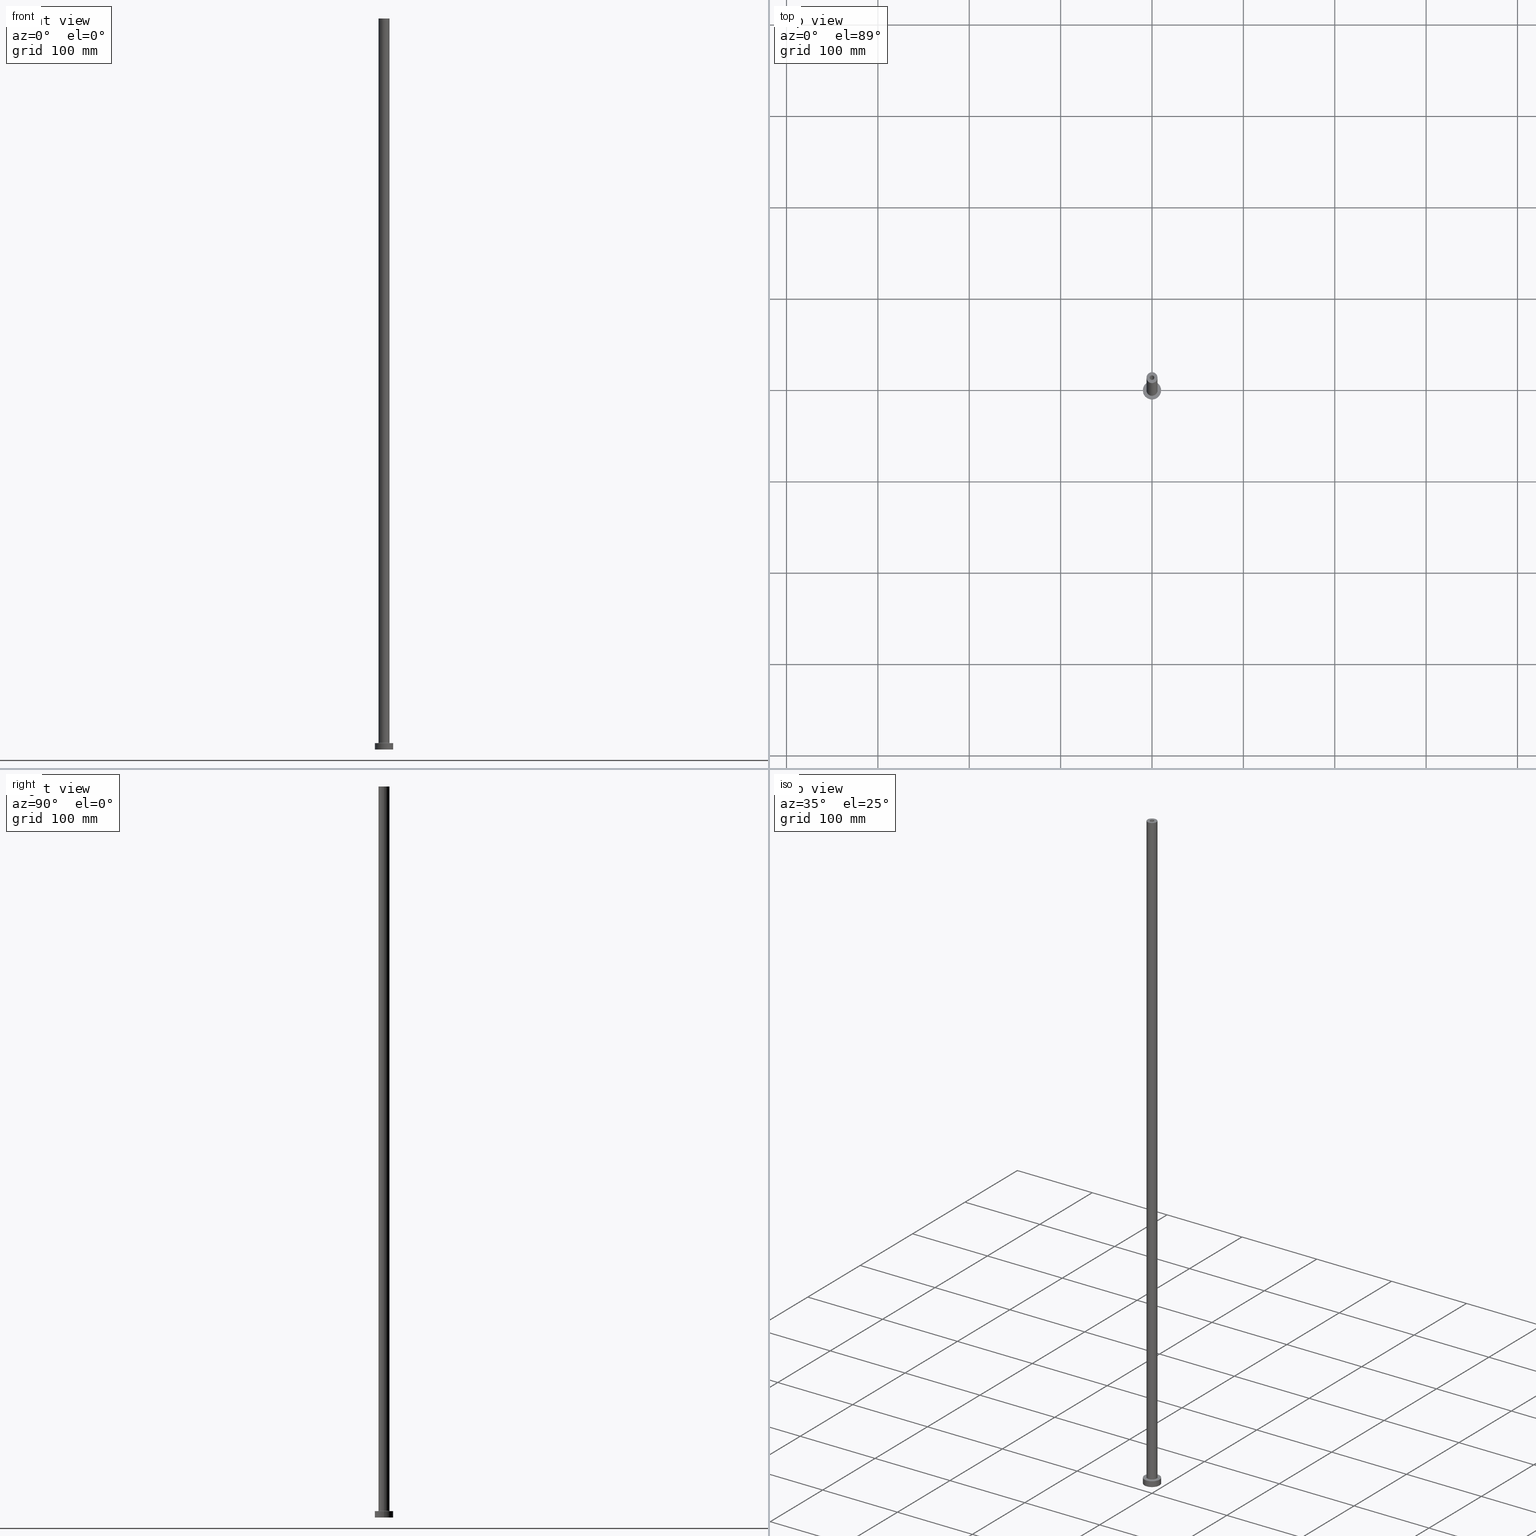
[diagram: canonical four-view strip — front | top / right | iso, engineering-drawing reading convention]
A machine part, canonical four-view strip (front | top / right | iso — engineering-drawing reading convention). The complete STEP part file that produces these views, byte-faithful:
ISO-10303-21;
HEADER;
FILE_DESCRIPTION (( 'STEP AP203' ),
    '1' );
FILE_NAME ('5ac9.STEP',
    '2023-02-13T16:43:34',
    ( '' ),
    ( '' ),
    'SwSTEP 2.0',
    'SolidWorks 2019',
    '' );
FILE_SCHEMA (( 'CONFIG_CONTROL_DESIGN' ));
ENDSEC;

DATA;
#1 = DIRECTION ( 'NONE',  ( 0.000000000000000000, 0.000000000000000000, -1.000000000000000000 ) ) ;
#2 = AXIS2_PLACEMENT_3D ( 'NONE', #54, #77, #235 ) ;
#3 = EDGE_LOOP ( 'NONE', ( #60, #399 ) ) ;
#4 = DIRECTION ( 'NONE',  ( -1.000000000000000000, 0.000000000000000000, 0.000000000000000000 ) ) ;
#5 = ADVANCED_FACE ( 'NONE', ( #360, #10 ), #291, .F. ) ;
#6 = FACE_OUTER_BOUND ( 'NONE', #22, .T. ) ;
#7 = PRODUCT_DEFINITION_SHAPE ( 'NONE', 'NONE',  #320 ) ;
#8 = DIRECTION ( 'NONE',  ( 1.000000000000000000, 0.000000000000000000, 0.000000000000000000 ) ) ;
#9 = AXIS2_PLACEMENT_3D ( 'NONE', #45, #181, #4 ) ;
#10 = FACE_OUTER_BOUND ( 'NONE', #161, .T. ) ;
#11 = AXIS2_PLACEMENT_3D ( 'NONE', #362, #149, #87 ) ;
#12 = ADVANCED_FACE ( 'NONE', ( #191, #160 ), #134, .T. ) ;
#13 = DIRECTION ( 'NONE',  ( -1.000000000000000000, 0.000000000000000000, 0.000000000000000000 ) ) ;
#14 = DIRECTION ( 'NONE',  ( -1.000000000000000000, 0.000000000000000000, 0.000000000000000000 ) ) ;
#15 = AXIS2_PLACEMENT_3D ( 'NONE', #334, #263, #162 ) ;
#16 = CC_DESIGN_SECURITY_CLASSIFICATION ( #248, ( #41 ) ) ;
#17 = ORIENTED_EDGE ( 'NONE', *, *, #299, .F. ) ;
#18 = CARTESIAN_POINT ( 'NONE',  ( 0.000000000000000000, 0.000000000000000000, 7.499999999999951150 ) ) ;
#19 = ORIENTED_EDGE ( 'NONE', *, *, #457, .F. ) ;
#20 = PERSON ( 'NEUR�EN�', 'NEUR�EN�', 'NEUR�EN�', ('NEUR�EN�'), ('NEUR�EN�'), ('NEUR�EN�') ) ;
#21 = DIRECTION ( 'NONE',  ( 0.000000000000000000, 0.000000000000000000, 1.000000000000000000 ) ) ;
#22 = EDGE_LOOP ( 'NONE', ( #379, #345 ) ) ;
#23 = CARTESIAN_POINT ( 'NONE',  ( 2.500000000000000000, 3.061616997868383141E-16, 800.0000000000000000 ) ) ;
#24 = DIRECTION ( 'NONE',  ( 1.000000000000000000, 0.000000000000000000, 0.000000000000000000 ) ) ;
#25 = CARTESIAN_POINT ( 'NONE',  ( 10.00000000000000000, 1.224646799147353256E-15, 7.000000000000000000 ) ) ;
#26 = CC_DESIGN_PERSON_AND_ORGANIZATION_ASSIGNMENT ( #281, #203, ( #330 ) ) ;
#27 = ORIENTED_EDGE ( 'NONE', *, *, #337, .F. ) ;
#28 = APPROVAL_PERSON_ORGANIZATION ( #271, #306, #76 ) ;
#29 = CARTESIAN_POINT ( 'NONE',  ( 0.000000000000000000, 0.000000000000000000, 800.0000000000000000 ) ) ;
#30 = DATE_AND_TIME ( #169, #120 ) ;
#31 = DIRECTION ( 'NONE',  ( 1.000000000000000000, 0.000000000000000000, 0.000000000000000000 ) ) ;
#32 = EDGE_CURVE ( 'NONE', #325, #154, #363, .T. ) ;
#33 = COORDINATED_UNIVERSAL_TIME_OFFSET ( 1, 0, .AHEAD. ) ;
#34 = CARTESIAN_POINT ( 'NONE',  ( 0.000000000000000000, 0.000000000000000000, 800.0000000000000000 ) ) ;
#35 = LINE ( 'NONE', #401, #302 ) ;
#36 = DIRECTION ( 'NONE',  ( -1.000000000000000000, 0.000000000000000000, 0.000000000000000000 ) ) ;
#37 = APPROVAL_ROLE ( '' ) ;
#38 = DIRECTION ( 'NONE',  ( 1.000000000000000000, 0.000000000000000000, 0.000000000000000000 ) ) ;
#39 = CIRCLE ( 'NONE', #318, 10.00000000000000000 ) ;
#40 = DIRECTION ( 'NONE',  ( 1.000000000000000000, 0.000000000000000000, 0.000000000000000000 ) ) ;
#41 = PRODUCT_DEFINITION_FORMATION_WITH_SPECIFIED_SOURCE ( 'LIBOVOLN�', '', #330, .NOT_KNOWN. ) ;
#42 = DIRECTION ( 'NONE',  ( -1.000000000000000000, 0.000000000000000000, 0.000000000000000000 ) ) ;
#43 = CARTESIAN_POINT ( 'NONE',  ( 0.000000000000000000, 0.000000000000000000, 7.000000000000000000 ) ) ;
#44 = CC_DESIGN_PERSON_AND_ORGANIZATION_ASSIGNMENT ( #395, #456, ( #248 ) ) ;
#45 = CARTESIAN_POINT ( 'NONE',  ( 0.000000000000000000, 0.000000000000000000, 800.0000000000000000 ) ) ;
#46 = ORIENTED_EDGE ( 'NONE', *, *, #32, .F. ) ;
#47 = CIRCLE ( 'NONE', #219, 6.000000000000000888 ) ;
#48 = DIRECTION ( 'NONE',  ( 1.000000000000000000, 0.000000000000000000, 0.000000000000000000 ) ) ;
#49 = AXIS2_PLACEMENT_3D ( 'NONE', #419, #388, #145 ) ;
#50 =( GEOMETRIC_REPRESENTATION_CONTEXT ( 3 ) GLOBAL_UNCERTAINTY_ASSIGNED_CONTEXT ( ( #292 ) ) GLOBAL_UNIT_ASSIGNED_CONTEXT ( ( #188, #440, #331 ) ) REPRESENTATION_CONTEXT ( 'NONE', 'WORKASPACE' ) );
#51 = EDGE_CURVE ( 'NONE', #314, #108, #47, .T. ) ;
#52 = AXIS2_PLACEMENT_3D ( 'NONE', #34, #272, #322 ) ;
#53 = CYLINDRICAL_SURFACE ( 'NONE', #88, 2.649999999999999911 ) ;
#54 = CARTESIAN_POINT ( 'NONE',  ( 0.000000000000000000, 0.000000000000000000, 7.000000000000000000 ) ) ;
#55 = FACE_OUTER_BOUND ( 'NONE', #340, .T. ) ;
#56 = AXIS2_PLACEMENT_3D ( 'NONE', #364, #336, #303 ) ;
#57 = CC_DESIGN_APPROVAL ( #306, ( #320 ) ) ;
#58 = VERTEX_POINT ( 'NONE', #266 ) ;
#59 = CARTESIAN_POINT ( 'NONE',  ( 2.649999999999999911, 3.245314017740485962E-16, 0.000000000000000000 ) ) ;
#60 = ORIENTED_EDGE ( 'NONE', *, *, #365, .F. ) ;
#61 = CARTESIAN_POINT ( 'NONE',  ( -2.500000000000000000, 0.000000000000000000, 755.0000000000000000 ) ) ;
#62 = ORIENTED_EDGE ( 'NONE', *, *, #82, .T. ) ;
#63 = ORIENTED_EDGE ( 'NONE', *, *, #72, .T. ) ;
#64 = CIRCLE ( 'NONE', #177, 0.5000000000000004441 ) ;
#65 = AXIS2_PLACEMENT_3D ( 'NONE', #107, #241, #40 ) ;
#66 = CC_DESIGN_DATE_AND_TIME_ASSIGNMENT ( #422, #344, ( #320 ) ) ;
#67 = CARTESIAN_POINT ( 'NONE',  ( 0.000000000000000000, 0.000000000000000000, 800.0000000000000000 ) ) ;
#68 = VERTEX_POINT ( 'NONE', #124 ) ;
#69 = EDGE_LOOP ( 'NONE', ( #210, #447, #165, #158 ) ) ;
#70 = APPLICATION_CONTEXT ( 'configuration controlled 3d designs of mechanical parts and assemblies' ) ;
#71 = ORIENTED_EDGE ( 'NONE', *, *, #400, .F. ) ;
#72 = EDGE_CURVE ( 'NONE', #296, #407, #373, .T. ) ;
#73 = AXIS2_PLACEMENT_3D ( 'NONE', #238, #196, #31 ) ;
#74 = COORDINATED_UNIVERSAL_TIME_OFFSET ( 1, 0, .AHEAD. ) ;
#75 = FACE_OUTER_BOUND ( 'NONE', #192, .T. ) ;
#76 = APPROVAL_ROLE ( '' ) ;
#77 = DIRECTION ( 'NONE',  ( 0.000000000000000000, 0.000000000000000000, 1.000000000000000000 ) ) ;
#78 = CARTESIAN_POINT ( 'NONE',  ( 2.649999999999999911, 3.245314017740485962E-16, 755.0000000000000000 ) ) ;
#79 = VERTEX_POINT ( 'NONE', #352 ) ;
#80 = DIRECTION ( 'NONE',  ( -0.000000000000000000, -0.000000000000000000, -1.000000000000000000 ) ) ;
#81 = VECTOR ( 'NONE', #353, 1000.000000000000000 ) ;
#82 = EDGE_CURVE ( 'NONE', #58, #325, #289, .T. ) ;
#83 = CARTESIAN_POINT ( 'NONE',  ( 0.000000000000000000, 0.000000000000000000, 755.0000000000000000 ) ) ;
#84 = LINE ( 'NONE', #250, #81 ) ;
#85 = EDGE_CURVE ( 'NONE', #221, #312, #361, .T. ) ;
#86 = CIRCLE ( 'NONE', #427, 2.500000000000000000 ) ;
#87 = DIRECTION ( 'NONE',  ( -1.000000000000000000, 1.224646799147351482E-16, 0.000000000000000000 ) ) ;
#88 = AXIS2_PLACEMENT_3D ( 'NONE', #215, #148, #13 ) ;
#89 = DIRECTION ( 'NONE',  ( 1.000000000000000000, 0.000000000000000000, 0.000000000000000000 ) ) ;
#90 = ORIENTED_EDGE ( 'NONE', *, *, #252, .T. ) ;
#91 = DIRECTION ( 'NONE',  ( -0.000000000000000000, -0.000000000000000000, -1.000000000000000000 ) ) ;
#92 = ADVANCED_FACE ( 'NONE', ( #254 ), #53, .F. ) ;
#93 = ORIENTED_EDGE ( 'NONE', *, *, #405, .F. ) ;
#94 = DIRECTION ( 'NONE',  ( 0.000000000000000000, -1.000000000000000000, 0.000000000000000000 ) ) ;
#95 = DIRECTION ( 'NONE',  ( 0.000000000000000000, 0.000000000000000000, 1.000000000000000000 ) ) ;
#96 = EDGE_CURVE ( 'NONE', #221, #390, #283, .T. ) ;
#97 = LINE ( 'NONE', #228, #397 ) ;
#98 = CIRCLE ( 'NONE', #350, 2.649999999999999911 ) ;
#99 = PERSON_AND_ORGANIZATION ( #20, #127 ) ;
#100 = PERSON_AND_ORGANIZATION ( #20, #127 ) ;
#101 = ORIENTED_EDGE ( 'NONE', *, *, #224, .F. ) ;
#102 = AXIS2_PLACEMENT_3D ( 'NONE', #139, #137, #433 ) ;
#103 = CALENDAR_DATE ( 2023, 13, 2 ) ;
#104 = FACE_OUTER_BOUND ( 'NONE', #69, .T. ) ;
#105 = TOROIDAL_SURFACE ( 'NONE', #460, 6.500000000000000888, 0.5000000000000000000 ) ;
#106 = DIRECTION ( 'NONE',  ( 0.000000000000000000, 0.000000000000000000, -1.000000000000000000 ) ) ;
#107 = CARTESIAN_POINT ( 'NONE',  ( 0.000000000000000000, 0.000000000000000000, 0.000000000000000000 ) ) ;
#108 = VERTEX_POINT ( 'NONE', #112 ) ;
#109 = CARTESIAN_POINT ( 'NONE',  ( -2.500000000000000000, 0.000000000000000000, 800.0000000000000000 ) ) ;
#110 = DATE_AND_TIME ( #103, #229 ) ;
#111 = DIRECTION ( 'NONE',  ( 0.000000000000000000, 0.000000000000000000, 1.000000000000000000 ) ) ;
#112 = CARTESIAN_POINT ( 'NONE',  ( -6.000000000000000888, 0.000000000000000000, 800.0000000000000000 ) ) ;
#113 = ADVANCED_FACE ( 'NONE', ( #146 ), #144, .F. ) ;
#114 = FACE_OUTER_BOUND ( 'NONE', #420, .T. ) ;
#115 = CIRCLE ( 'NONE', #324, 2.649999999999999911 ) ;
#116 = DIRECTION ( 'NONE',  ( -0.000000000000000000, -0.000000000000000000, -1.000000000000000000 ) ) ;
#117 = DIRECTION ( 'NONE',  ( -1.000000000000000000, 0.000000000000000000, 0.000000000000000000 ) ) ;
#118 = ADVANCED_FACE ( 'NONE', ( #55 ), #403, .F. ) ;
#119 = VECTOR ( 'NONE', #446, 1000.000000000000000 ) ;
#120 = LOCAL_TIME ( 17, 43, 34.00000000000000000, #270 ) ;
#121 = CARTESIAN_POINT ( 'NONE',  ( -10.00000000000000000, 0.000000000000000000, 7.000000000000000000 ) ) ;
#122 = ADVANCED_FACE ( 'NONE', ( #359, #6 ), #436, .T. ) ;
#123 = ORIENTED_EDGE ( 'NONE', *, *, #214, .T. ) ;
#124 = CARTESIAN_POINT ( 'NONE',  ( -2.649999999999999911, 0.000000000000000000, 0.000000000000000000 ) ) ;
#125 = CARTESIAN_POINT ( 'NONE',  ( 2.500000000000000000, 3.061616997868383141E-16, 800.0000000000000000 ) ) ;
#126 = AXIS2_PLACEMENT_3D ( 'NONE', #305, #130, #220 ) ;
#127 = ORGANIZATION ( 'NEUR�EN�', 'NEUR�EN�', '' ) ;
#128 = CARTESIAN_POINT ( 'NONE',  ( 2.500000000000000000, 3.061616997868383141E-16, 755.0000000000000000 ) ) ;
#129 = EDGE_CURVE ( 'NONE', #451, #58, #239, .T. ) ;
#130 = DIRECTION ( 'NONE',  ( 0.000000000000000000, 0.000000000000000000, 1.000000000000000000 ) ) ;
#131 = ORIENTED_EDGE ( 'NONE', *, *, #299, .T. ) ;
#132 = AXIS2_PLACEMENT_3D ( 'NONE', #406, #371, #260 ) ;
#133 = VERTEX_POINT ( 'NONE', #389 ) ;
#134 = PLANE ( 'NONE',  #52 ) ;
#135 = APPROVAL_ROLE ( '' ) ;
#136 = ORIENTED_EDGE ( 'NONE', *, *, #349, .T. ) ;
#137 = DIRECTION ( 'NONE',  ( 0.000000000000000000, 0.000000000000000000, 1.000000000000000000 ) ) ;
#138 = APPROVAL_STATUS ( 'not_yet_approved' ) ;
#139 = CARTESIAN_POINT ( 'NONE',  ( 0.000000000000000000, 0.000000000000000000, 800.0000000000000000 ) ) ;
#140 = DIRECTION ( 'NONE',  ( 1.000000000000000000, 0.000000000000000000, 0.000000000000000000 ) ) ;
#141 = EDGE_CURVE ( 'NONE', #327, #133, #163, .T. ) ;
#142 = CARTESIAN_POINT ( 'NONE',  ( 0.000000000000000000, 0.000000000000000000, 755.0000000000000000 ) ) ;
#143 = CARTESIAN_POINT ( 'NONE',  ( -10.00000000000000000, 0.000000000000000000, 7.000000000000000000 ) ) ;
#144 = TOROIDAL_SURFACE ( 'NONE', #199, 6.500000000000000888, 0.5000000000000000000 ) ;
#145 = DIRECTION ( 'NONE',  ( 1.000000000000000000, 0.000000000000000000, 0.000000000000000000 ) ) ;
#146 = FACE_OUTER_BOUND ( 'NONE', #201, .T. ) ;
#147 = EDGE_CURVE ( 'NONE', #414, #458, #438, .T. ) ;
#148 = DIRECTION ( 'NONE',  ( 0.000000000000000000, 0.000000000000000000, -1.000000000000000000 ) ) ;
#149 = DIRECTION ( 'NONE',  ( 1.224646799147353207E-16, 1.000000000000000000, -0.000000000000000000 ) ) ;
#150 = CARTESIAN_POINT ( 'NONE',  ( 0.000000000000000000, 0.000000000000000000, 0.000000000000000000 ) ) ;
#151 = DIRECTION ( 'NONE',  ( 1.000000000000000000, 0.000000000000000000, -0.000000000000000000 ) ) ;
#152 = CARTESIAN_POINT ( 'NONE',  ( 6.500000000000000888, 0.000000000000000000, 6.999999999999975131 ) ) ;
#153 = CC_DESIGN_PERSON_AND_ORGANIZATION_ASSIGNMENT ( #100, #237, ( #41 ) ) ;
#154 = VERTEX_POINT ( 'NONE', #152 ) ;
#155 = DIRECTION ( 'NONE',  ( 0.000000000000000000, 0.000000000000000000, -1.000000000000000000 ) ) ;
#156 = EDGE_LOOP ( 'NONE', ( #242, #380, #372, #230 ) ) ;
#157 = DIRECTION ( 'NONE',  ( 1.000000000000000000, 0.000000000000000000, 0.000000000000000000 ) ) ;
#158 = ORIENTED_EDGE ( 'NONE', *, *, #85, .F. ) ;
#159 = DIRECTION ( 'NONE',  ( 0.000000000000000000, 0.000000000000000000, 1.000000000000000000 ) ) ;
#160 = FACE_OUTER_BOUND ( 'NONE', #356, .T. ) ;
#161 = EDGE_LOOP ( 'NONE', ( #101, #93 ) ) ;
#162 = DIRECTION ( 'NONE',  ( -1.000000000000000000, 0.000000000000000000, 0.000000000000000000 ) ) ;
#163 = CIRCLE ( 'NONE', #49, 2.649999999999999911 ) ;
#164 = LOCAL_TIME ( 17, 43, 34.00000000000000000, #308 ) ;
#165 = ORIENTED_EDGE ( 'NONE', *, *, #405, .T. ) ;
#166 = CARTESIAN_POINT ( 'NONE',  ( 6.000000000000000888, 7.347880794884120722E-16, 7.499999999999951150 ) ) ;
#167 = FACE_OUTER_BOUND ( 'NONE', #171, .T. ) ;
#168 = AXIS2_PLACEMENT_3D ( 'NONE', #286, #116, #8 ) ;
#169 = CALENDAR_DATE ( 2023, 13, 2 ) ;
#170 = ORIENTED_EDGE ( 'NONE', *, *, #413, .T. ) ;
#171 = EDGE_LOOP ( 'NONE', ( #63, #204, #251, #304 ) ) ;
#172 = COORDINATED_UNIVERSAL_TIME_OFFSET ( 1, 0, .AHEAD. ) ;
#173 = LINE ( 'NONE', #284, #217 ) ;
#174 = APPROVAL_DATE_TIME ( #30, #332 ) ;
#175 = EDGE_CURVE ( 'NONE', #133, #327, #115, .T. ) ;
#176 = ORIENTED_EDGE ( 'NONE', *, *, #175, .F. ) ;
#177 = AXIS2_PLACEMENT_3D ( 'NONE', #376, #94, #408 ) ;
#178 = CYLINDRICAL_SURFACE ( 'NONE', #410, 10.00000000000000000 ) ;
#179 = PLANE ( 'NONE',  #309 ) ;
#180 = ORIENTED_EDGE ( 'NONE', *, *, #129, .T. ) ;
#181 = DIRECTION ( 'NONE',  ( -0.000000000000000000, -0.000000000000000000, -1.000000000000000000 ) ) ;
#182 = DIRECTION ( 'NONE',  ( 0.000000000000000000, 0.000000000000000000, 1.000000000000000000 ) ) ;
#183 = CIRCLE ( 'NONE', #384, 2.649999999999999911 ) ;
#184 = CYLINDRICAL_SURFACE ( 'NONE', #341, 6.000000000000000888 ) ;
#185 = ADVANCED_FACE ( 'NONE', ( #321 ), #430, .F. ) ;
#186 = EDGE_LOOP ( 'NONE', ( #416, #236, #343, #206 ) ) ;
#187 = CIRCLE ( 'NONE', #258, 2.500000000000000000 ) ;
#188 =( LENGTH_UNIT ( ) NAMED_UNIT ( * ) SI_UNIT ( .MILLI., .METRE. ) );
#189 = DIRECTION ( 'NONE',  ( 0.000000000000000000, 0.000000000000000000, 1.000000000000000000 ) ) ;
#190 = LINE ( 'NONE', #23, #119 ) ;
#191 = FACE_BOUND ( 'NONE', #300, .T. ) ;
#192 = EDGE_LOOP ( 'NONE', ( #428, #338, #366, #46 ) ) ;
#193 = EDGE_CURVE ( 'NONE', #314, #451, #84, .T. ) ;
#194 = DIRECTION ( 'NONE',  ( 0.000000000000000000, 0.000000000000000000, -1.000000000000000000 ) ) ;
#195 = ORIENTED_EDGE ( 'NONE', *, *, #382, .F. ) ;
#196 = DIRECTION ( 'NONE',  ( 0.000000000000000000, 0.000000000000000000, 1.000000000000000000 ) ) ;
#197 = CARTESIAN_POINT ( 'NONE',  ( 0.000000000000000000, 0.000000000000000000, 0.000000000000000000 ) ) ;
#198 = AXIS2_PLACEMENT_3D ( 'NONE', #319, #1, #117 ) ;
#199 = AXIS2_PLACEMENT_3D ( 'NONE', #18, #189, #275 ) ;
#200 = CC_DESIGN_PERSON_AND_ORGANIZATION_ASSIGNMENT ( #99, #347, ( #41 ) ) ;
#201 = EDGE_LOOP ( 'NONE', ( #277, #62, #17, #27 ) ) ;
#202 = CARTESIAN_POINT ( 'NONE',  ( 0.000000000000000000, 0.000000000000000000, 800.0000000000000000 ) ) ;
#203 = PERSON_AND_ORGANIZATION_ROLE ( 'design_owner' ) ;
#204 = ORIENTED_EDGE ( 'NONE', *, *, #400, .T. ) ;
#205 = CALENDAR_DATE ( 2023, 13, 2 ) ;
#206 = ORIENTED_EDGE ( 'NONE', *, *, #374, .F. ) ;
#207 = DIRECTION ( 'NONE',  ( 1.000000000000000000, 0.000000000000000000, 0.000000000000000000 ) ) ;
#208 = ADVANCED_FACE ( 'NONE', ( #346, #114 ), #179, .F. ) ;
#209 = SECURITY_CLASSIFICATION_LEVEL ( 'unclassified' ) ;
#210 = ORIENTED_EDGE ( 'NONE', *, *, #358, .F. ) ;
#211 = CIRCLE ( 'NONE', #367, 6.000000000000000888 ) ;
#212 = CARTESIAN_POINT ( 'NONE',  ( 0.000000000000000000, 0.000000000000000000, 0.000000000000000000 ) ) ;
#213 = DIRECTION ( 'NONE',  ( 0.000000000000000000, 0.000000000000000000, 1.000000000000000000 ) ) ;
#214 = EDGE_CURVE ( 'NONE', #296, #414, #35, .T. ) ;
#215 = CARTESIAN_POINT ( 'NONE',  ( 0.000000000000000000, 0.000000000000000000, 762.4953318805775098 ) ) ;
#216 = CARTESIAN_POINT ( 'NONE',  ( 0.000000000000000000, 0.000000000000000000, 7.000000000000000000 ) ) ;
#217 = VECTOR ( 'NONE', #354, 1000.000000000000000 ) ;
#218 = ADVANCED_FACE ( 'NONE', ( #75 ), #105, .F. ) ;
#219 = AXIS2_PLACEMENT_3D ( 'NONE', #29, #313, #157 ) ;
#220 = DIRECTION ( 'NONE',  ( 1.000000000000000000, 0.000000000000000000, 0.000000000000000000 ) ) ;
#221 = VERTEX_POINT ( 'NONE', #143 ) ;
#222 = AXIS2_PLACEMENT_3D ( 'NONE', #432, #287, #207 ) ;
#223 = CYLINDRICAL_SURFACE ( 'NONE', #15, 2.500000000000000000 ) ;
#224 = EDGE_CURVE ( 'NONE', #312, #79, #39, .T. ) ;
#225 = DIRECTION ( 'NONE',  ( -0.000000000000000000, -0.000000000000000000, -1.000000000000000000 ) ) ;
#226 = DIRECTION ( 'NONE',  ( 1.000000000000000000, 0.000000000000000000, 0.000000000000000000 ) ) ;
#227 = AXIS2_PLACEMENT_3D ( 'NONE', #378, #21, #89 ) ;
#228 = CARTESIAN_POINT ( 'NONE',  ( 2.649999999999999911, 3.245314017740485962E-16, 762.4953318805775098 ) ) ;
#229 = LOCAL_TIME ( 17, 43, 34.00000000000000000, #33 ) ;
#230 = ORIENTED_EDGE ( 'NONE', *, *, #365, .T. ) ;
#231 = APPROVAL ( #431, 'NEUR�EN�' ) ;
#232 = PERSON_AND_ORGANIZATION ( #20, #127 ) ;
#233 = ORIENTED_EDGE ( 'NONE', *, *, #349, .F. ) ;
#234 = CALENDAR_DATE ( 2023, 13, 2 ) ;
#235 = DIRECTION ( 'NONE',  ( 1.000000000000000000, 0.000000000000000000, -0.000000000000000000 ) ) ;
#236 = ORIENTED_EDGE ( 'NONE', *, *, #429, .T. ) ;
#237 = PERSON_AND_ORGANIZATION_ROLE ( 'design_supplier' ) ;
#238 = CARTESIAN_POINT ( 'NONE',  ( 0.000000000000000000, 0.000000000000000000, 7.499999999999951150 ) ) ;
#239 = CIRCLE ( 'NONE', #73, 6.000000000000000888 ) ;
#240 = CARTESIAN_POINT ( 'NONE',  ( 0.000000000000000000, 0.000000000000000000, 7.000000000000000000 ) ) ;
#241 = DIRECTION ( 'NONE',  ( 0.000000000000000000, 0.000000000000000000, 1.000000000000000000 ) ) ;
#242 = ORIENTED_EDGE ( 'NONE', *, *, #429, .F. ) ;
#243 = CARTESIAN_POINT ( 'NONE',  ( 6.000000000000000888, 7.347880794884120722E-16, 800.0000000000000000 ) ) ;
#244 = DATE_AND_TIME ( #424, #164 ) ;
#245 = FACE_OUTER_BOUND ( 'NONE', #393, .T. ) ;
#246 = DIRECTION ( 'NONE',  ( 0.000000000000000000, 0.000000000000000000, 1.000000000000000000 ) ) ;
#247 = DIRECTION ( 'NONE',  ( 1.000000000000000000, 0.000000000000000000, 0.000000000000000000 ) ) ;
#248 = SECURITY_CLASSIFICATION ( '', '', #209 ) ;
#249 = PRODUCT_RELATED_PRODUCT_CATEGORY ( 'detail', '', ( #330 ) ) ;
#250 = CARTESIAN_POINT ( 'NONE',  ( 6.000000000000000888, 7.347880794884120722E-16, 800.0000000000000000 ) ) ;
#251 = ORIENTED_EDGE ( 'NONE', *, *, #147, .F. ) ;
#252 = EDGE_CURVE ( 'NONE', #458, #414, #86, .T. ) ;
#253 = VECTOR ( 'NONE', #155, 1000.000000000000000 ) ;
#254 = FACE_OUTER_BOUND ( 'NONE', #186, .T. ) ;
#255 = CYLINDRICAL_SURFACE ( 'NONE', #56, 10.00000000000000000 ) ;
#256 = EDGE_LOOP ( 'NONE', ( #131, #333 ) ) ;
#257 = ORIENTED_EDGE ( 'NONE', *, *, #141, .F. ) ;
#258 = AXIS2_PLACEMENT_3D ( 'NONE', #412, #159, #226 ) ;
#259 = APPROVAL_PERSON_ORGANIZATION ( #232, #332, #37 ) ;
#260 = DIRECTION ( 'NONE',  ( 1.000000000000000000, 0.000000000000000000, 0.000000000000000000 ) ) ;
#261 = EDGE_CURVE ( 'NONE', #390, #79, #173, .T. ) ;
#262 = DESIGN_CONTEXT ( 'detailed design', #70, 'design' ) ;
#263 = DIRECTION ( 'NONE',  ( 0.000000000000000000, 0.000000000000000000, -1.000000000000000000 ) ) ;
#264 = MANIFOLD_SOLID_BREP ( 'Odebrat vysunut�m4', #425 ) ;
#265 = ORIENTED_EDGE ( 'NONE', *, *, #147, .T. ) ;
#266 = CARTESIAN_POINT ( 'NONE',  ( -6.000000000000000888, 0.000000000000000000, 7.499999999999951150 ) ) ;
#267 = CARTESIAN_POINT ( 'NONE',  ( -6.000000000000000888, 0.000000000000000000, 800.0000000000000000 ) ) ;
#268 = ADVANCED_FACE ( 'NONE', ( #104 ), #178, .T. ) ;
#269 = AXIS2_PLACEMENT_3D ( 'NONE', #202, #106, #36 ) ;
#270 = COORDINATED_UNIVERSAL_TIME_OFFSET ( 1, 0, .AHEAD. ) ;
#271 = PERSON_AND_ORGANIZATION ( #20, #127 ) ;
#272 = DIRECTION ( 'NONE',  ( 0.000000000000000000, 0.000000000000000000, 1.000000000000000000 ) ) ;
#273 = ORIENTED_EDGE ( 'NONE', *, *, #193, .F. ) ;
#274 = APPLICATION_CONTEXT ( 'configuration controlled 3d designs of mechanical parts and assemblies' ) ;
#275 = DIRECTION ( 'NONE',  ( 1.000000000000000000, 0.000000000000000000, 0.000000000000000000 ) ) ;
#276 = PERSON_AND_ORGANIZATION_ROLE ( 'creator' ) ;
#277 = ORIENTED_EDGE ( 'NONE', *, *, #413, .F. ) ;
#278 = APPLICATION_PROTOCOL_DEFINITION ( 'international standard', 'config_control_design', 1994, #70 ) ;
#279 = AXIS2_PLACEMENT_3D ( 'NONE', #240, #459, #140 ) ;
#280 = CARTESIAN_POINT ( 'NONE',  ( -10.00000000000000000, 0.000000000000000000, 0.000000000000000000 ) ) ;
#281 = PERSON_AND_ORGANIZATION ( #20, #127 ) ;
#282 = DIRECTION ( 'NONE',  ( 0.000000000000000000, 0.000000000000000000, 1.000000000000000000 ) ) ;
#283 = CIRCLE ( 'NONE', #339, 10.00000000000000000 ) ;
#284 = CARTESIAN_POINT ( 'NONE',  ( 10.00000000000000000, 1.224646799147353256E-15, 7.000000000000000000 ) ) ;
#285 = ADVANCED_FACE ( 'NONE', ( #316 ), #434, .T. ) ;
#286 = CARTESIAN_POINT ( 'NONE',  ( 0.000000000000000000, 0.000000000000000000, 7.000000000000000000 ) ) ;
#287 = DIRECTION ( 'NONE',  ( 0.000000000000000000, 0.000000000000000000, 1.000000000000000000 ) ) ;
#288 = ADVANCED_FACE ( 'NONE', ( #245 ), #184, .T. ) ;
#289 = CIRCLE ( 'NONE', #11, 0.5000000000000004441 ) ;
#290 = DIRECTION ( 'NONE',  ( 0.000000000000000000, 0.000000000000000000, 1.000000000000000000 ) ) ;
#291 = PLANE ( 'NONE',  #394 ) ;
#292 = UNCERTAINTY_MEASURE_WITH_UNIT (LENGTH_MEASURE( 1.000000000000000082E-05 ), #188, 'distance_accuracy_value', 'NONE');
#293 = CIRCLE ( 'NONE', #126, 10.00000000000000000 ) ;
#294 = LOCAL_TIME ( 17, 43, 34.00000000000000000, #74 ) ;
#295 = DIRECTION ( 'NONE',  ( 0.000000000000000000, 0.000000000000000000, 1.000000000000000000 ) ) ;
#296 = VERTEX_POINT ( 'NONE', #109 ) ;
#297 = DIRECTION ( 'NONE',  ( -0.000000000000000000, -0.000000000000000000, -1.000000000000000000 ) ) ;
#298 = ORIENTED_EDGE ( 'NONE', *, *, #96, .F. ) ;
#299 = EDGE_CURVE ( 'NONE', #154, #325, #421, .T. ) ;
#300 = EDGE_LOOP ( 'NONE', ( #417, #233 ) ) ;
#301 = LINE ( 'NONE', #449, #253 ) ;
#302 = VECTOR ( 'NONE', #396, 1000.000000000000000 ) ;
#303 = DIRECTION ( 'NONE',  ( -1.000000000000000000, 0.000000000000000000, 0.000000000000000000 ) ) ;
#304 = ORIENTED_EDGE ( 'NONE', *, *, #214, .F. ) ;
#305 = CARTESIAN_POINT ( 'NONE',  ( 0.000000000000000000, 0.000000000000000000, 7.000000000000000000 ) ) ;
#306 = APPROVAL ( #455, 'NEUR�EN�' ) ;
#307 = EDGE_LOOP ( 'NONE', ( #443, #298, #402, #335 ) ) ;
#308 = COORDINATED_UNIVERSAL_TIME_OFFSET ( 1, 0, .AHEAD. ) ;
#309 = AXIS2_PLACEMENT_3D ( 'NONE', #142, #295, #348 ) ;
#310 = DATE_AND_TIME ( #234, #411 ) ;
#311 = APPROVAL_PERSON_ORGANIZATION ( #452, #231, #135 ) ;
#312 = VERTEX_POINT ( 'NONE', #280 ) ;
#313 = DIRECTION ( 'NONE',  ( 0.000000000000000000, 0.000000000000000000, 1.000000000000000000 ) ) ;
#314 = VERTEX_POINT ( 'NONE', #243 ) ;
#315 = APPROVAL_DATE_TIME ( #244, #306 ) ;
#316 = FACE_OUTER_BOUND ( 'NONE', #441, .T. ) ;
#317 = SHAPE_DEFINITION_REPRESENTATION ( #7, #450 ) ;
#318 = AXIS2_PLACEMENT_3D ( 'NONE', #212, #111, #38 ) ;
#319 = CARTESIAN_POINT ( 'NONE',  ( 0.000000000000000000, 0.000000000000000000, 762.4953318805775098 ) ) ;
#320 = PRODUCT_DEFINITION ( 'NEZN�M�', '', #41, #262 ) ;
#321 = FACE_OUTER_BOUND ( 'NONE', #156, .T. ) ;
#322 = DIRECTION ( 'NONE',  ( 1.000000000000000000, 0.000000000000000000, -0.000000000000000000 ) ) ;
#323 = CARTESIAN_POINT ( 'NONE',  ( 0.000000000000000000, 0.000000000000000000, 7.499999999999951150 ) ) ;
#324 = AXIS2_PLACEMENT_3D ( 'NONE', #398, #282, #435 ) ;
#325 = VERTEX_POINT ( 'NONE', #391 ) ;
#326 = ORIENTED_EDGE ( 'NONE', *, *, #252, .F. ) ;
#327 = VERTEX_POINT ( 'NONE', #78 ) ;
#328 = CARTESIAN_POINT ( 'NONE',  ( 0.000000000000000000, 0.000000000000000000, 800.0000000000000000 ) ) ;
#329 = VECTOR ( 'NONE', #225, 1000.000000000000000 ) ;
#330 = PRODUCT ( '5ac9', '5ac9', '', ( #381 ) ) ;
#331 =( NAMED_UNIT ( * ) SI_UNIT ( $, .STERADIAN. ) SOLID_ANGLE_UNIT ( ) );
#332 = APPROVAL ( #138, 'NEUR�EN�' ) ;
#333 = ORIENTED_EDGE ( 'NONE', *, *, #32, .T. ) ;
#334 = CARTESIAN_POINT ( 'NONE',  ( 0.000000000000000000, 0.000000000000000000, 800.0000000000000000 ) ) ;
#335 = ORIENTED_EDGE ( 'NONE', *, *, #224, .T. ) ;
#336 = DIRECTION ( 'NONE',  ( -0.000000000000000000, -0.000000000000000000, -1.000000000000000000 ) ) ;
#337 = EDGE_CURVE ( 'NONE', #451, #154, #64, .T. ) ;
#338 = ORIENTED_EDGE ( 'NONE', *, *, #129, .F. ) ;
#339 = AXIS2_PLACEMENT_3D ( 'NONE', #43, #182, #247 ) ;
#340 = EDGE_LOOP ( 'NONE', ( #71, #136, #123, #326 ) ) ;
#341 = AXIS2_PLACEMENT_3D ( 'NONE', #328, #80, #14 ) ;
#342 = APPROVAL_DATE_TIME ( #110, #231 ) ;
#343 = ORIENTED_EDGE ( 'NONE', *, *, #423, .T. ) ;
#344 = DATE_TIME_ROLE ( 'creation_date' ) ;
#345 = ORIENTED_EDGE ( 'NONE', *, *, #358, .T. ) ;
#346 = FACE_BOUND ( 'NONE', #445, .T. ) ;
#347 = PERSON_AND_ORGANIZATION_ROLE ( 'creator' ) ;
#348 = DIRECTION ( 'NONE',  ( 1.000000000000000000, 0.000000000000000000, -0.000000000000000000 ) ) ;
#349 = EDGE_CURVE ( 'NONE', #407, #296, #187, .T. ) ;
#350 = AXIS2_PLACEMENT_3D ( 'NONE', #197, #297, #442 ) ;
#351 = CC_DESIGN_APPROVAL ( #332, ( #248 ) ) ;
#352 = CARTESIAN_POINT ( 'NONE',  ( 10.00000000000000000, 1.224646799147353256E-15, 0.000000000000000000 ) ) ;
#353 = DIRECTION ( 'NONE',  ( -0.000000000000000000, -0.000000000000000000, -1.000000000000000000 ) ) ;
#354 = DIRECTION ( 'NONE',  ( -0.000000000000000000, -0.000000000000000000, -1.000000000000000000 ) ) ;
#355 = VECTOR ( 'NONE', #404, 1000.000000000000000 ) ;
#356 = EDGE_LOOP ( 'NONE', ( #370, #387 ) ) ;
#357 = DIRECTION ( 'NONE',  ( 1.000000000000000000, 0.000000000000000000, 0.000000000000000000 ) ) ;
#358 = EDGE_CURVE ( 'NONE', #390, #221, #293, .T. ) ;
#359 = FACE_BOUND ( 'NONE', #256, .T. ) ;
#360 = FACE_BOUND ( 'NONE', #3, .T. ) ;
#361 = LINE ( 'NONE', #121, #355 ) ;
#362 = CARTESIAN_POINT ( 'NONE',  ( -6.500000000000000888, 7.960204194457796463E-16, 7.499999999999951150 ) ) ;
#363 = CIRCLE ( 'NONE', #168, 6.500000000000000888 ) ;
#364 = CARTESIAN_POINT ( 'NONE',  ( 0.000000000000000000, 0.000000000000000000, 7.000000000000000000 ) ) ;
#365 = EDGE_CURVE ( 'NONE', #68, #409, #183, .T. ) ;
#366 = ORIENTED_EDGE ( 'NONE', *, *, #337, .T. ) ;
#367 = AXIS2_PLACEMENT_3D ( 'NONE', #67, #95, #448 ) ;
#368 = ORIENTED_EDGE ( 'NONE', *, *, #193, .T. ) ;
#369 = CARTESIAN_POINT ( 'NONE',  ( 0.000000000000000000, 0.000000000000000000, 0.000000000000000000 ) ) ;
#370 = ORIENTED_EDGE ( 'NONE', *, *, #457, .T. ) ;
#371 = DIRECTION ( 'NONE',  ( 0.000000000000000000, 0.000000000000000000, 1.000000000000000000 ) ) ;
#372 = ORIENTED_EDGE ( 'NONE', *, *, #374, .T. ) ;
#373 = CIRCLE ( 'NONE', #102, 2.500000000000000000 ) ;
#374 = EDGE_CURVE ( 'NONE', #133, #68, #301, .T. ) ;
#375 = ORIENTED_EDGE ( 'NONE', *, *, #382, .T. ) ;
#376 = CARTESIAN_POINT ( 'NONE',  ( 6.500000000000000888, 0.000000000000000000, 7.499999999999951150 ) ) ;
#377 = CIRCLE ( 'NONE', #227, 10.00000000000000000 ) ;
#378 = CARTESIAN_POINT ( 'NONE',  ( 0.000000000000000000, 0.000000000000000000, 0.000000000000000000 ) ) ;
#379 = ORIENTED_EDGE ( 'NONE', *, *, #96, .T. ) ;
#380 = ORIENTED_EDGE ( 'NONE', *, *, #141, .T. ) ;
#381 = MECHANICAL_CONTEXT ( 'NONE', #274, 'mechanical' ) ;
#382 = EDGE_CURVE ( 'NONE', #108, #58, #418, .T. ) ;
#383 = ORIENTED_EDGE ( 'NONE', *, *, #51, .F. ) ;
#384 = AXIS2_PLACEMENT_3D ( 'NONE', #369, #91, #24 ) ;
#385 = APPLICATION_PROTOCOL_DEFINITION ( 'international standard', 'config_control_design', 1994, #274 ) ;
#386 = CC_DESIGN_APPROVAL ( #231, ( #41 ) ) ;
#387 = ORIENTED_EDGE ( 'NONE', *, *, #51, .T. ) ;
#388 = DIRECTION ( 'NONE',  ( 0.000000000000000000, 0.000000000000000000, 1.000000000000000000 ) ) ;
#389 = CARTESIAN_POINT ( 'NONE',  ( -2.649999999999999911, 0.000000000000000000, 755.0000000000000000 ) ) ;
#390 = VERTEX_POINT ( 'NONE', #25 ) ;
#391 = CARTESIAN_POINT ( 'NONE',  ( -6.500000000000000888, 7.960204194457796463E-16, 6.999999999999975131 ) ) ;
#392 = CC_DESIGN_PERSON_AND_ORGANIZATION_ASSIGNMENT ( #426, #276, ( #320 ) ) ;
#393 = EDGE_LOOP ( 'NONE', ( #273, #19, #375, #170 ) ) ;
#394 = AXIS2_PLACEMENT_3D ( 'NONE', #150, #290, #151 ) ;
#395 = PERSON_AND_ORGANIZATION ( #20, #127 ) ;
#396 = DIRECTION ( 'NONE',  ( 0.000000000000000000, 0.000000000000000000, -1.000000000000000000 ) ) ;
#397 = VECTOR ( 'NONE', #194, 1000.000000000000000 ) ;
#398 = CARTESIAN_POINT ( 'NONE',  ( 0.000000000000000000, 0.000000000000000000, 755.0000000000000000 ) ) ;
#399 = ORIENTED_EDGE ( 'NONE', *, *, #423, .F. ) ;
#400 = EDGE_CURVE ( 'NONE', #407, #458, #190, .T. ) ;
#401 = CARTESIAN_POINT ( 'NONE',  ( -2.500000000000000000, 0.000000000000000000, 800.0000000000000000 ) ) ;
#402 = ORIENTED_EDGE ( 'NONE', *, *, #85, .T. ) ;
#403 = CYLINDRICAL_SURFACE ( 'NONE', #269, 2.500000000000000000 ) ;
#404 = DIRECTION ( 'NONE',  ( -0.000000000000000000, -0.000000000000000000, -1.000000000000000000 ) ) ;
#405 = EDGE_CURVE ( 'NONE', #79, #312, #377, .T. ) ;
#406 = CARTESIAN_POINT ( 'NONE',  ( 0.000000000000000000, 0.000000000000000000, 7.499999999999951150 ) ) ;
#407 = VERTEX_POINT ( 'NONE', #125 ) ;
#408 = DIRECTION ( 'NONE',  ( 0.000000000000000000, 0.000000000000000000, -1.000000000000000000 ) ) ;
#409 = VERTEX_POINT ( 'NONE', #59 ) ;
#410 = AXIS2_PLACEMENT_3D ( 'NONE', #216, #461, #42 ) ;
#411 = LOCAL_TIME ( 17, 43, 34.00000000000000000, #172 ) ;
#412 = CARTESIAN_POINT ( 'NONE',  ( 0.000000000000000000, 0.000000000000000000, 800.0000000000000000 ) ) ;
#413 = EDGE_CURVE ( 'NONE', #58, #451, #437, .T. ) ;
#414 = VERTEX_POINT ( 'NONE', #61 ) ;
#415 = FACE_OUTER_BOUND ( 'NONE', #307, .T. ) ;
#416 = ORIENTED_EDGE ( 'NONE', *, *, #175, .T. ) ;
#417 = ORIENTED_EDGE ( 'NONE', *, *, #72, .F. ) ;
#418 = LINE ( 'NONE', #267, #329 ) ;
#419 = CARTESIAN_POINT ( 'NONE',  ( 0.000000000000000000, 0.000000000000000000, 755.0000000000000000 ) ) ;
#420 = EDGE_LOOP ( 'NONE', ( #176, #257 ) ) ;
#421 = CIRCLE ( 'NONE', #279, 6.500000000000000888 ) ;
#422 = DATE_AND_TIME ( #205, #294 ) ;
#423 = EDGE_CURVE ( 'NONE', #409, #68, #98, .T. ) ;
#424 = CALENDAR_DATE ( 2023, 13, 2 ) ;
#425 = CLOSED_SHELL ( 'NONE', ( #439, #92, #113, #285, #268, #453, #122, #5, #288, #12, #218, #185, #208, #118 ) ) ;
#426 = PERSON_AND_ORGANIZATION ( #20, #127 ) ;
#427 = AXIS2_PLACEMENT_3D ( 'NONE', #83, #213, #48 ) ;
#428 = ORIENTED_EDGE ( 'NONE', *, *, #82, .F. ) ;
#429 = EDGE_CURVE ( 'NONE', #327, #409, #97, .T. ) ;
#430 = CYLINDRICAL_SURFACE ( 'NONE', #198, 2.649999999999999911 ) ;
#431 = APPROVAL_STATUS ( 'not_yet_approved' ) ;
#432 = CARTESIAN_POINT ( 'NONE',  ( 0.000000000000000000, 0.000000000000000000, 755.0000000000000000 ) ) ;
#433 = DIRECTION ( 'NONE',  ( 1.000000000000000000, 0.000000000000000000, 0.000000000000000000 ) ) ;
#434 = CYLINDRICAL_SURFACE ( 'NONE', #9, 6.000000000000000888 ) ;
#435 = DIRECTION ( 'NONE',  ( 1.000000000000000000, 0.000000000000000000, 0.000000000000000000 ) ) ;
#436 = PLANE ( 'NONE',  #2 ) ;
#437 = CIRCLE ( 'NONE', #132, 6.000000000000000888 ) ;
#438 = CIRCLE ( 'NONE', #222, 2.500000000000000000 ) ;
#439 = ADVANCED_FACE ( 'NONE', ( #167 ), #223, .F. ) ;
#440 =( NAMED_UNIT ( * ) PLANE_ANGLE_UNIT ( ) SI_UNIT ( $, .RADIAN. ) );
#441 = EDGE_LOOP ( 'NONE', ( #383, #368, #180, #195 ) ) ;
#442 = DIRECTION ( 'NONE',  ( 1.000000000000000000, 0.000000000000000000, 0.000000000000000000 ) ) ;
#443 = ORIENTED_EDGE ( 'NONE', *, *, #261, .F. ) ;
#444 = CC_DESIGN_DATE_AND_TIME_ASSIGNMENT ( #310, #454, ( #248 ) ) ;
#445 = EDGE_LOOP ( 'NONE', ( #265, #90 ) ) ;
#446 = DIRECTION ( 'NONE',  ( 0.000000000000000000, 0.000000000000000000, -1.000000000000000000 ) ) ;
#447 = ORIENTED_EDGE ( 'NONE', *, *, #261, .T. ) ;
#448 = DIRECTION ( 'NONE',  ( 1.000000000000000000, 0.000000000000000000, 0.000000000000000000 ) ) ;
#449 = CARTESIAN_POINT ( 'NONE',  ( -2.649999999999999911, 0.000000000000000000, 762.4953318805775098 ) ) ;
#450 = ADVANCED_BREP_SHAPE_REPRESENTATION ( '5ac9', ( #264, #65 ), #50 ) ;
#451 = VERTEX_POINT ( 'NONE', #166 ) ;
#452 = PERSON_AND_ORGANIZATION ( #20, #127 ) ;
#453 = ADVANCED_FACE ( 'NONE', ( #415 ), #255, .T. ) ;
#454 = DATE_TIME_ROLE ( 'classification_date' ) ;
#455 = APPROVAL_STATUS ( 'not_yet_approved' ) ;
#456 = PERSON_AND_ORGANIZATION_ROLE ( 'classification_officer' ) ;
#457 = EDGE_CURVE ( 'NONE', #108, #314, #211, .T. ) ;
#458 = VERTEX_POINT ( 'NONE', #128 ) ;
#459 = DIRECTION ( 'NONE',  ( -0.000000000000000000, -0.000000000000000000, -1.000000000000000000 ) ) ;
#460 = AXIS2_PLACEMENT_3D ( 'NONE', #323, #246, #357 ) ;
#461 = DIRECTION ( 'NONE',  ( -0.000000000000000000, -0.000000000000000000, -1.000000000000000000 ) ) ;
ENDSEC;
END-ISO-10303-21;
